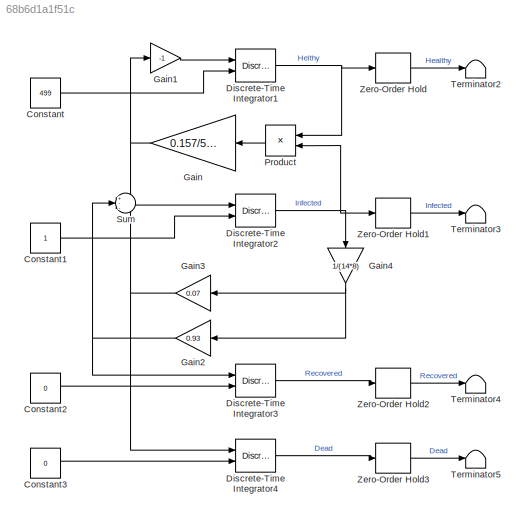
MODEL slx_68b6d1a1f51c
KIND model
CONFIG AbsTol = auto
CONFIG EnableMultiTasking = off
CONFIG FixedStep = 1
CONFIG MaxStep = 0.1
CONFIG MinStep = auto
CONFIG RelTol = 1e-3
CONFIG SampleTimeConstraint = Unconstrained
CONFIG SolverName = FixedStepDiscrete
CONFIG StartTime = 0.0
CONFIG StopTime = 640
BLOCK [Constant] Constant
  Value = 499
BLOCK [Constant] Constant1
BLOCK [Constant] Constant2
  Value = 0
BLOCK [Constant] Constant3
  Value = 0
BLOCK [DiscreteIntegrator] Discrete-Time Integrator1
  ICPrevOutput = DiscIntNeverNeededParam
  ICPrevScaledInput = DiscIntNeverNeededParam
  InitialConditionSetting = Auto
  InitialConditionSource = external
  Ports = [2, 1]
BLOCK [DiscreteIntegrator] Discrete-Time Integrator2
  ICPrevOutput = DiscIntNeverNeededParam
  ICPrevScaledInput = DiscIntNeverNeededParam
  InitialConditionSetting = Auto
  InitialConditionSource = external
  Ports = [2, 1]
BLOCK [DiscreteIntegrator] Discrete-Time Integrator3
  ICPrevOutput = DiscIntNeverNeededParam
  ICPrevScaledInput = DiscIntNeverNeededParam
  InitialConditionSetting = Auto
  InitialConditionSource = external
  Ports = [2, 1]
BLOCK [DiscreteIntegrator] Discrete-Time Integrator4
  ICPrevOutput = DiscIntNeverNeededParam
  ICPrevScaledInput = DiscIntNeverNeededParam
  InitialConditionSetting = Auto
  InitialConditionSource = external
  Ports = [2, 1]
BLOCK [Gain] Gain
  Gain = 0.157/500
  NameLocation = top
BLOCK [Gain] Gain1
  Gain = -1
BLOCK [Gain] Gain2
  Gain = 0.93
  NameLocation = top
BLOCK [Gain] Gain3
  Gain = 0.07
  NameLocation = top
BLOCK [Gain] Gain4
  Gain = 1/(14*8)
  NameLocation = left
BLOCK [Product] Product
  NameLocation = top
  Ports = [2, 1]
BLOCK [Sum] Sum
  Inputs = +--
  Ports = [3, 1]
BLOCK [Terminator] Terminator2
BLOCK [Terminator] Terminator3
BLOCK [Terminator] Terminator4
BLOCK [Terminator] Terminator5
BLOCK [ZeroOrderHold] Zero-Order Hold
  SampleTime = 8
BLOCK [ZeroOrderHold] Zero-Order Hold1
  SampleTime = 8
BLOCK [ZeroOrderHold] Zero-Order Hold2
  SampleTime = 8
BLOCK [ZeroOrderHold] Zero-Order Hold3
  SampleTime = 8
LINE Constant1:1 -> Discrete-Time Integrator2:2
LINE Constant2:1 -> Discrete-Time Integrator3:2
LINE Constant3:1 -> Discrete-Time Integrator4:2
LINE Constant:1 -> Discrete-Time Integrator1:2
NET Discrete-Time Integrator1:1 -> Product:1, Zero-Order Hold:1
NET Discrete-Time Integrator2:1 -> Gain4:1, Product:2, Zero-Order Hold1:1
LINE Discrete-Time Integrator3:1 -> Zero-Order Hold2:1
LINE Discrete-Time Integrator4:1 -> Zero-Order Hold3:1
LINE Gain1:1 -> Discrete-Time Integrator1:1
NET Gain2:1 -> Discrete-Time Integrator3:1, Sum:2
NET Gain3:1 -> Discrete-Time Integrator4:1, Sum:3
NET Gain4:1 -> Gain2:1, Gain3:1
NET Gain:1 -> Gain1:1, Sum:1
LINE Product:1 -> Gain:1
LINE Sum:1 -> Discrete-Time Integrator2:1
LINE Zero-Order Hold1:1 -> Terminator3:1
LINE Zero-Order Hold2:1 -> Terminator4:1
LINE Zero-Order Hold3:1 -> Terminator5:1
LINE Zero-Order Hold:1 -> Terminator2:1
note: NET lines group one-source signal fan-out (src -> all destinations, sorted); 1:1 wires keep LINE
